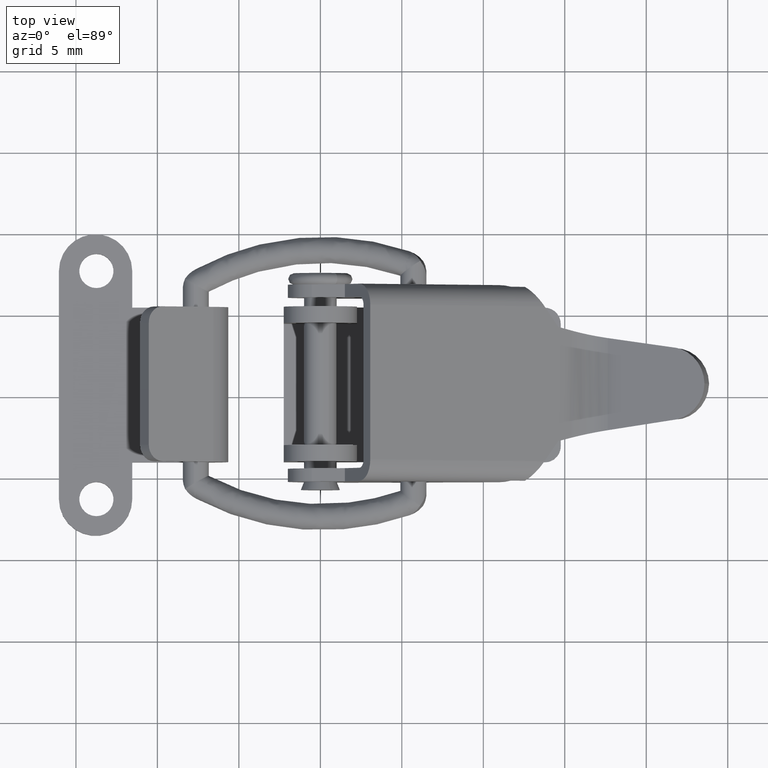
[diagram: clean part render]
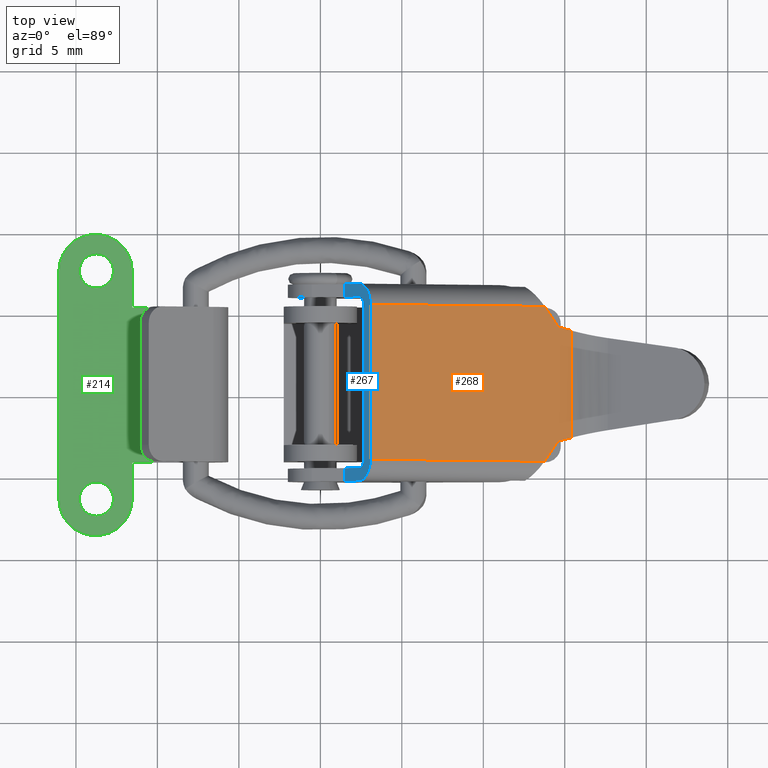
[diagram: same view with three faces highlighted in distinct colors, each labeled with its STEP entity id]
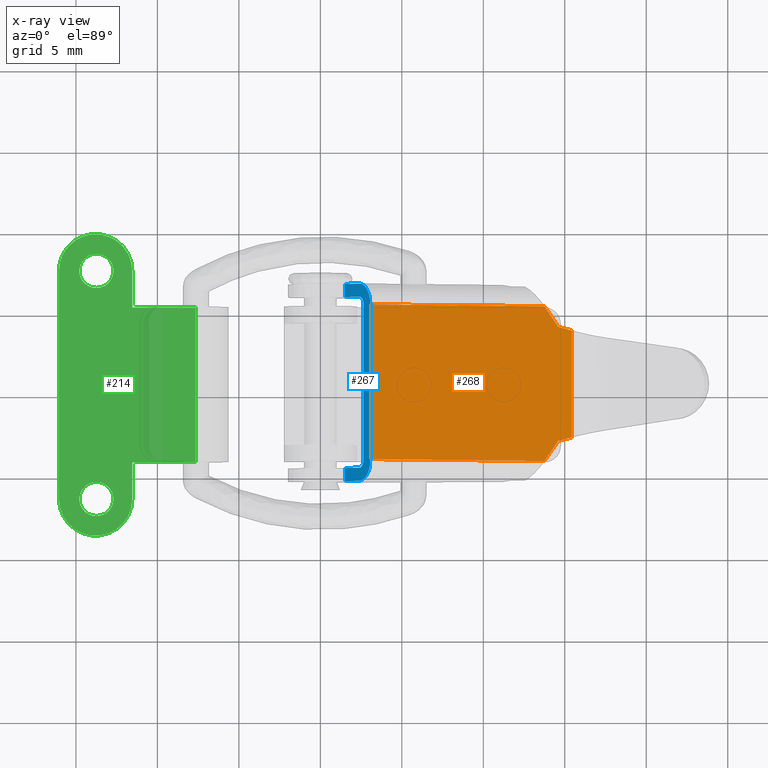
[diagram: x-ray of the same camera — body ghosted, the three highlighted faces saturated]
A machine part, top view with three faces highlighted in distinct colors.
The next image is the same camera in x-ray (body ghosted, the three faces saturated) — at least one of them is partly hidden behind the body in this view.
Their STEP definitions:

[orange] entity #268 — the highlighted planar face has unit normal (-0.5195, 0, -0.8545).
#268=ADVANCED_FACE('',(#1142),#1141,.F.);
#1141=PLANE('',#1965);
#1142=FACE_OUTER_BOUND('',#1966,.T.);
#1962=CARTESIAN_POINT('',(1.58959432741E+01,-5.70000000000E+00,0.00000000000E+00));
#1963=DIRECTION('',(0.00000000000E+00,0.00000000000E+00,-1.00000000000E+00));
#1964=DIRECTION('',(-1.00000000000E+00,0.00000000000E+00,0.00000000000E+00));
#1965=AXIS2_PLACEMENT_3D('',#1962,#1963,#1964);
#1966=EDGE_LOOP('',(#2694,#2695,#2696,#2697,#2698,#2699,#2700,#2701,#2702));
#2694=ORIENTED_EDGE('',*,*,#3104,.F.);
#2695=ORIENTED_EDGE('',*,*,#3105,.T.);
#2696=ORIENTED_EDGE('',*,*,#3099,.F.);
#2697=ORIENTED_EDGE('',*,*,#3106,.T.);
#2698=ORIENTED_EDGE('',*,*,#3107,.F.);
#2699=ORIENTED_EDGE('',*,*,#3108,.F.);
#2700=ORIENTED_EDGE('',*,*,#3109,.F.);
#2701=ORIENTED_EDGE('',*,*,#3110,.T.);
#2702=ORIENTED_EDGE('',*,*,#3080,.F.);
#3080=EDGE_CURVE('',#4753,#4760,#4761,.T.);
#3099=EDGE_CURVE('',#4890,#4891,#4892,.T.);
#3104=EDGE_CURVE('',#4922,#4753,#4923,.T.);
#3105=EDGE_CURVE('',#4922,#4891,#4929,.T.);
#3106=EDGE_CURVE('',#4890,#4935,#4936,.T.);
#3107=EDGE_CURVE('',#4942,#4935,#4943,.T.);
#3108=EDGE_CURVE('',#4949,#4942,#4950,.T.);
#3109=EDGE_CURVE('',#4956,#4949,#4957,.T.);
#3110=EDGE_CURVE('',#4956,#4760,#4963,.T.);
#4753=VERTEX_POINT('',#6282);
#4760=VERTEX_POINT('',#6286);
#4761=LINE('',#6287,#6288);
#4890=VERTEX_POINT('',#6369);
#4891=VERTEX_POINT('',#6370);
#4892=LINE('',#6371,#6372);
#4922=VERTEX_POINT('',#6389);
#4923=LINE('',#6390,#6391);
#4929=LINE('',#6393,#6394);
#4935=VERTEX_POINT('',#6396);
#4936=LINE('',#6397,#6398);
#4942=VERTEX_POINT('',#6400);
#4943=LINE('',#6401,#6402);
#4949=VERTEX_POINT('',#6404);
#4950=LINE('',#6405,#6406);
#4956=VERTEX_POINT('',#6408);
#4957=LINE('',#6409,#6410);
#4963=LINE('',#6412,#6413);
#6282=CARTESIAN_POINT('',(1.35000000000E+01,3.50000000000E+00,0.00000000000E+00));
#6286=CARTESIAN_POINT('',(1.44508575219E+01,3.28399004930E+00,0.00000000000E+00));
#6287=CARTESIAN_POINT('',(1.35000000000E+01,3.50000000000E+00,0.00000000000E+00));
#6288=VECTOR('',#6289,9.75084778764E-01);
#6289=DIRECTION('',(9.75153691883E-01,-2.21529404836E-01,0.00000000000E+00));
#6369=CARTESIAN_POINT('',(0.00000000000E+00,-4.75000000000E+00,0.00000000000E+00));
#6370=CARTESIAN_POINT('',(0.00000000000E+00,4.75000000000E+00,0.00000000000E+00));
#6371=CARTESIAN_POINT('',(0.00000000000E+00,-4.75000000000E+00,0.00000000000E+00));
#6372=VECTOR('',#6373,9.50000000000E+00);
#6373=DIRECTION('',(0.00000000000E+00,1.00000000000E+00,0.00000000000E+00));
#6389=CARTESIAN_POINT('',(1.25196078431E+01,4.75000000000E+00,0.00000000000E+00));
#6390=CARTESIAN_POINT('',(1.25196078431E+01,4.75000000000E+00,0.00000000000E+00));
#6391=VECTOR('',#6392,1.58860592384E+00);
#6392=DIRECTION('',(6.17139935185E-01,-7.86853417353E-01,0.00000000000E+00));
#6393=CARTESIAN_POINT('',(1.25196078431E+01,4.75000000000E+00,0.00000000000E+00));
#6394=VECTOR('',#6395,1.25196078431E+01);
#6395=DIRECTION('',(-1.00000000000E+00,0.00000000000E+00,0.00000000000E+00));
#6396=CARTESIAN_POINT('',(1.25196078431E+01,-4.75000000000E+00,0.00000000000E+00));
#6397=CARTESIAN_POINT('',(0.00000000000E+00,-4.75000000000E+00,0.00000000000E+00));
#6398=VECTOR('',#6399,1.25196078431E+01);
#6399=DIRECTION('',(1.00000000000E+00,0.00000000000E+00,0.00000000000E+00));
#6400=CARTESIAN_POINT('',(1.35000000000E+01,-3.50000000000E+00,0.00000000000E+00));
#6401=CARTESIAN_POINT('',(1.35000000000E+01,-3.50000000000E+00,0.00000000000E+00));
#6402=VECTOR('',#6403,1.58860592384E+00);
#6403=DIRECTION('',(-6.17139935184E-01,-7.86853417353E-01,0.00000000000E+00));
#6404=CARTESIAN_POINT('',(1.35433557425E+01,-3.50000000000E+00,0.00000000000E+00));
#6405=CARTESIAN_POINT('',(1.35433557425E+01,-3.50000000000E+00,0.00000000000E+00));
#6406=VECTOR('',#6407,4.33557424568E-02);
#6407=DIRECTION('',(-1.00000000000E+00,0.00000000000E+00,0.00000000000E+00));
#6408=CARTESIAN_POINT('',(1.44508575219E+01,-3.29227312831E+00,0.00000000000E+00));
#6409=CARTESIAN_POINT('',(1.44508575219E+01,-3.29227312831E+00,0.00000000000E+00));
#6410=VECTOR('',#6411,9.30972573678E-01);
#6411=DIRECTION('',(-9.74788952024E-01,-2.23128884309E-01,0.00000000000E+00));
#6412=CARTESIAN_POINT('',(1.44508575219E+01,-3.29227312831E+00,2.88657986403E-14));
#6413=VECTOR('',#6414,6.57626317761E+00);
#6414=DIRECTION('',(0.00000000000E+00,1.00000000000E+00,0.00000000000E+00));

[blue] entity #267 — the highlighted planar face has unit normal (0.8545, 0, -0.5195).
#267=ADVANCED_FACE('',(#1132),#1131,.F.);
#1131=PLANE('',#1960);
#1132=FACE_OUTER_BOUND('',#1961,.T.);
#1957=CARTESIAN_POINT('',(0.00000000000E+00,-7.26000000000E+00,3.00000000000E-01));
#1958=DIRECTION('',(1.00000000000E+00,-0.00000000000E+00,0.00000000000E+00));
#1959=DIRECTION('',(0.00000000000E+00,0.00000000000E+00,-1.00000000000E+00));
#1960=AXIS2_PLACEMENT_3D('',#1957,#1958,#1959);
#1961=EDGE_LOOP('',(#2682,#2683,#2684,#2685,#2686,#2687,#2688,#2689,#2690,#2691,#2692,#2693));
#2682=ORIENTED_EDGE('',*,*,#3099,.T.);
#2683=ORIENTED_EDGE('',*,*,#3100,.T.);
#2684=ORIENTED_EDGE('',*,*,#3056,.T.);
#2685=ORIENTED_EDGE('',*,*,#3101,.F.);
#2686=ORIENTED_EDGE('',*,*,#3085,.F.);
#2687=ORIENTED_EDGE('',*,*,#3102,.T.);
#2688=ORIENTED_EDGE('',*,*,#3034,.F.);
#2689=ORIENTED_EDGE('',*,*,#3076,.T.);
#2690=ORIENTED_EDGE('',*,*,#3094,.T.);
#2691=ORIENTED_EDGE('',*,*,#3053,.F.);
#2692=ORIENTED_EDGE('',*,*,#3068,.F.);
#2693=ORIENTED_EDGE('',*,*,#3103,.T.);
#3034=EDGE_CURVE('',#4442,#4449,#4450,.T.);
#3053=EDGE_CURVE('',#4576,#4577,#4578,.T.);
#3056=EDGE_CURVE('',#4596,#4597,#4598,.T.);
#3068=EDGE_CURVE('',#4673,#4576,#4680,.T.);
#3076=EDGE_CURVE('',#4442,#4727,#4734,.T.);
#3085=EDGE_CURVE('',#4787,#4794,#4795,.T.);
#3094=EDGE_CURVE('',#4727,#4577,#4856,.T.);
#3099=EDGE_CURVE('',#4890,#4891,#4892,.T.);
#3100=EDGE_CURVE('',#4891,#4596,#4898,.T.);
#3101=EDGE_CURVE('',#4794,#4597,#4904,.T.);
#3102=EDGE_CURVE('',#4787,#4449,#4910,.T.);
#3103=EDGE_CURVE('',#4673,#4890,#4916,.T.);
#4442=VERTEX_POINT('',#6093);
#4449=VERTEX_POINT('',#6097);
#4450=LINE('',#6098,#6099);
#4576=VERTEX_POINT('',#6171);
#4577=VERTEX_POINT('',#6172);
#4578=LINE('',#6173,#6174);
#4596=VERTEX_POINT('',#6182);
#4597=VERTEX_POINT('',#6183);
#4598=LINE('',#6184,#6185);
#4673=VERTEX_POINT('',#6232);
#4680=LINE('',#6236,#6237);
#4727=VERTEX_POINT('',#6267);
#4734=CIRCLE('',#6274,5.00000000000E-01);
#4787=VERTEX_POINT('',#6301);
#4794=VERTEX_POINT('',#6305);
#4795=LINE('',#6306,#6307);
#4856=LINE('',#6346,#6347);
#4890=VERTEX_POINT('',#6369);
#4891=VERTEX_POINT('',#6370);
#4892=LINE('',#6371,#6372);
#4898=CIRCLE('',#6377,1.30000000000E+00);
#4904=LINE('',#6378,#6379);
#4910=CIRCLE('',#6384,5.00000000000E-01);
#4916=CIRCLE('',#6388,1.30000000000E+00);
#6093=CARTESIAN_POINT('',(0.00000000000E+00,-4.75000000000E+00,-8.00000000000E-01));
#6097=CARTESIAN_POINT('',(0.00000000000E+00,4.75000000000E+00,-8.00000000000E-01));
#6098=CARTESIAN_POINT('',(0.00000000000E+00,-4.75000000000E+00,-8.00000000000E-01));
#6099=VECTOR('',#6100,9.50000000000E+00);
#6100=DIRECTION('',(0.00000000000E+00,1.00000000000E+00,0.00000000000E+00));
#6171=CARTESIAN_POINT('',(0.00000000000E+00,-6.05000000000E+00,-3.00000000000E+00));
#6172=CARTESIAN_POINT('',(0.00000000000E+00,-5.25000000000E+00,-3.00000000000E+00));
#6173=CARTESIAN_POINT('',(0.00000000000E+00,-6.05000000000E+00,-3.00000000000E+00));
#6174=VECTOR('',#6175,8.00000000000E-01);
#6175=DIRECTION('',(0.00000000000E+00,1.00000000000E+00,0.00000000000E+00));
#6182=CARTESIAN_POINT('',(0.00000000000E+00,6.05000000000E+00,-1.30000000000E+00));
#6183=CARTESIAN_POINT('',(0.00000000000E+00,6.05000000000E+00,-3.00000000000E+00));
#6184=CARTESIAN_POINT('',(0.00000000000E+00,6.05000000000E+00,-1.30000000000E+00));
#6185=VECTOR('',#6186,1.70000000000E+00);
#6186=DIRECTION('',(0.00000000000E+00,0.00000000000E+00,-1.00000000000E+00));
#6232=CARTESIAN_POINT('',(0.00000000000E+00,-6.05000000000E+00,-1.30000000000E+00));
#6236=CARTESIAN_POINT('',(0.00000000000E+00,-6.05000000000E+00,-1.30000000000E+00));
#6237=VECTOR('',#6238,1.70000000000E+00);
#6238=DIRECTION('',(0.00000000000E+00,0.00000000000E+00,-1.00000000000E+00));
#6267=CARTESIAN_POINT('',(0.00000000000E+00,-5.25000000000E+00,-1.30000000000E+00));
#6271=CARTESIAN_POINT('',(0.00000000000E+00,-4.75000000000E+00,-1.30000000000E+00));
#6272=DIRECTION('',(1.00000000000E+00,0.00000000000E+00,0.00000000000E+00));
#6273=DIRECTION('',(-0.00000000000E+00,-0.00000000000E+00,1.00000000000E+00));
#6274=AXIS2_PLACEMENT_3D('',#6271,#6272,#6273);
#6301=CARTESIAN_POINT('',(0.00000000000E+00,5.25000000000E+00,-1.30000000000E+00));
#6305=CARTESIAN_POINT('',(0.00000000000E+00,5.25000000000E+00,-3.00000000000E+00));
#6306=CARTESIAN_POINT('',(0.00000000000E+00,5.25000000000E+00,-1.30000000000E+00));
#6307=VECTOR('',#6308,1.70000000000E+00);
#6308=DIRECTION('',(0.00000000000E+00,0.00000000000E+00,-1.00000000000E+00));
#6346=CARTESIAN_POINT('',(0.00000000000E+00,-5.25000000000E+00,-1.30000000000E+00));
#6347=VECTOR('',#6348,1.70000000000E+00);
#6348=DIRECTION('',(0.00000000000E+00,0.00000000000E+00,-1.00000000000E+00));
#6369=CARTESIAN_POINT('',(0.00000000000E+00,-4.75000000000E+00,0.00000000000E+00));
#6370=CARTESIAN_POINT('',(0.00000000000E+00,4.75000000000E+00,0.00000000000E+00));
#6371=CARTESIAN_POINT('',(0.00000000000E+00,-4.75000000000E+00,0.00000000000E+00));
#6372=VECTOR('',#6373,9.50000000000E+00);
#6373=DIRECTION('',(0.00000000000E+00,1.00000000000E+00,0.00000000000E+00));
#6374=CARTESIAN_POINT('',(0.00000000000E+00,4.75000000000E+00,-1.30000000000E+00));
#6375=DIRECTION('',(-1.00000000000E+00,0.00000000000E+00,-0.00000000000E+00));
#6376=DIRECTION('',(-0.00000000000E+00,-0.00000000000E+00,1.00000000000E+00));
#6377=AXIS2_PLACEMENT_3D('',#6374,#6375,#6376);
#6378=CARTESIAN_POINT('',(0.00000000000E+00,5.25000000000E+00,-3.00000000000E+00));
#6379=VECTOR('',#6380,8.00000000000E-01);
#6380=DIRECTION('',(0.00000000000E+00,1.00000000000E+00,0.00000000000E+00));
#6381=CARTESIAN_POINT('',(0.00000000000E+00,4.75000000000E+00,-1.30000000000E+00));
#6382=DIRECTION('',(1.00000000000E+00,0.00000000000E+00,0.00000000000E+00));
#6383=DIRECTION('',(-0.00000000000E+00,-0.00000000000E+00,1.00000000000E+00));
#6384=AXIS2_PLACEMENT_3D('',#6381,#6382,#6383);
#6385=CARTESIAN_POINT('',(0.00000000000E+00,-4.75000000000E+00,-1.30000000000E+00));
#6386=DIRECTION('',(-1.00000000000E+00,0.00000000000E+00,-0.00000000000E+00));
#6387=DIRECTION('',(-0.00000000000E+00,2.93098878501E-14,1.00000000000E+00));
#6388=AXIS2_PLACEMENT_3D('',#6385,#6386,#6387);

[green] entity #214 — the highlighted planar face has unit normal (0, 0, -1).
#214=ADVANCED_FACE('',(#584,#585,#586),#583,.F.);
#583=PLANE('',#1661);
#584=FACE_OUTER_BOUND('',#1662,.T.);
#585=FACE_BOUND('',#1663,.T.);
#586=FACE_BOUND('',#1664,.T.);
#1658=CARTESIAN_POINT('',(-8.40000000000E-01,-1.00000000000E+00,-1.11000000000E+01));
#1659=DIRECTION('',(0.00000000000E+00,1.00000000000E+00,0.00000000000E+00));
#1660=DIRECTION('',(0.00000000000E+00,-0.00000000000E+00,1.00000000000E+00));
#1661=AXIS2_PLACEMENT_3D('',#1658,#1659,#1660);
#1662=EDGE_LOOP('',(#2390,#2391,#2392,#2393,#2394,#2395,#2396,#2397));
#1663=EDGE_LOOP('',(#2398,#2399));
#1664=EDGE_LOOP('',(#2400,#2401));
#2390=ORIENTED_EDGE('',*,*,#2931,.T.);
#2391=ORIENTED_EDGE('',*,*,#2933,.T.);
#2392=ORIENTED_EDGE('',*,*,#2934,.F.);
#2393=ORIENTED_EDGE('',*,*,#2912,.T.);
#2394=ORIENTED_EDGE('',*,*,#2935,.F.);
#2395=ORIENTED_EDGE('',*,*,#2907,.F.);
#2396=ORIENTED_EDGE('',*,*,#2936,.F.);
#2397=ORIENTED_EDGE('',*,*,#2937,.T.);
#2398=ORIENTED_EDGE('',*,*,#2938,.F.);
#2399=ORIENTED_EDGE('',*,*,#2939,.F.);
#2400=ORIENTED_EDGE('',*,*,#2940,.F.);
#2401=ORIENTED_EDGE('',*,*,#2941,.F.);
#2907=EDGE_CURVE('',#3595,#3602,#3603,.T.);
#2912=EDGE_CURVE('',#3636,#3629,#3637,.T.);
#2931=EDGE_CURVE('',#3762,#3755,#3763,.T.);
#2933=EDGE_CURVE('',#3755,#3775,#3776,.T.);
#2934=EDGE_CURVE('',#3636,#3775,#3782,.T.);
#2935=EDGE_CURVE('',#3602,#3629,#3788,.T.);
#2936=EDGE_CURVE('',#3794,#3595,#3795,.T.);
#2937=EDGE_CURVE('',#3794,#3762,#3801,.T.);
#2938=EDGE_CURVE('',#3807,#3808,#3809,.T.);
#2939=EDGE_CURVE('',#3808,#3807,#3815,.T.);
#2940=EDGE_CURVE('',#3821,#3822,#3823,.T.);
#2941=EDGE_CURVE('',#3822,#3821,#3829,.T.);
#3595=VERTEX_POINT('',#5585);
#3602=VERTEX_POINT('',#5589);
#3603=LINE('',#5590,#5591);
#3629=VERTEX_POINT('',#5605);
#3636=VERTEX_POINT('',#5610);
#3637=LINE('',#5611,#5612);
#3755=VERTEX_POINT('',#5682);
#3762=VERTEX_POINT('',#5686);
#3763=LINE('',#5687,#5688);
#3775=VERTEX_POINT('',#5693);
#3776=CIRCLE('',#5697,2.25000000000E+00);
#3782=LINE('',#5698,#5699);
#3788=LINE('',#5701,#5702);
#3794=VERTEX_POINT('',#5704);
#3795=LINE('',#5705,#5706);
#3801=CIRCLE('',#5711,2.25000000000E+00);
#3807=VERTEX_POINT('',#5712);
#3808=VERTEX_POINT('',#5713);
#3809=CIRCLE('',#5717,1.05000000000E+00);
#3815=CIRCLE('',#5721,1.05000000000E+00);
#3821=VERTEX_POINT('',#5722);
#3822=VERTEX_POINT('',#5723);
#3823=CIRCLE('',#5727,1.05000000000E+00);
#3829=CIRCLE('',#5731,1.05000000000E+00);
#5585=CARTESIAN_POINT('',(4.50000000000E+00,-1.00000000000E+00,4.75000000000E+00));
#5589=CARTESIAN_POINT('',(8.40000000000E+00,-1.00000000000E+00,4.75000000000E+00));
#5590=CARTESIAN_POINT('',(4.50000000000E+00,-1.00000000000E+00,4.75000000000E+00));
#5591=VECTOR('',#5592,3.90000000000E+00);
#5592=DIRECTION('',(1.00000000000E+00,0.00000000000E+00,0.00000000000E+00));
#5605=CARTESIAN_POINT('',(8.40000000000E+00,-1.00000000000E+00,-4.75000000000E+00));
#5610=CARTESIAN_POINT('',(4.50000000000E+00,-1.00000000000E+00,-4.75000000000E+00));
#5611=CARTESIAN_POINT('',(4.50000000000E+00,-1.00000000000E+00,-4.75000000000E+00));
#5612=VECTOR('',#5613,3.90000000000E+00);
#5613=DIRECTION('',(1.00000000000E+00,0.00000000000E+00,0.00000000000E+00));
#5682=CARTESIAN_POINT('',(-1.42108547152E-14,-1.00000000000E+00,-7.00000000000E+00));
#5686=CARTESIAN_POINT('',(1.42108547152E-14,-1.00000000000E+00,7.00000000000E+00));
#5687=CARTESIAN_POINT('',(1.42108547152E-14,-1.00000000000E+00,7.00000000000E+00));
#5688=VECTOR('',#5689,1.40000000000E+01);
#5689=DIRECTION('',(0.00000000000E+00,0.00000000000E+00,-1.00000000000E+00));
#5693=CARTESIAN_POINT('',(4.50000000000E+00,-1.00000000000E+00,-7.00000000000E+00));
#5694=CARTESIAN_POINT('',(2.25000000000E+00,-1.00000000000E+00,-7.00000000000E+00));
#5695=DIRECTION('',(0.00000000000E+00,-1.00000000000E+00,0.00000000000E+00));
#5696=DIRECTION('',(-0.00000000000E+00,-0.00000000000E+00,1.00000000000E+00));
#5697=AXIS2_PLACEMENT_3D('',#5694,#5695,#5696);
#5698=CARTESIAN_POINT('',(4.50000000000E+00,-1.00000000000E+00,-4.75000000000E+00));
#5699=VECTOR('',#5700,2.25000000000E+00);
#5700=DIRECTION('',(0.00000000000E+00,0.00000000000E+00,-1.00000000000E+00));
#5701=CARTESIAN_POINT('',(8.40000000000E+00,-1.00000000000E+00,4.75000000000E+00));
#5702=VECTOR('',#5703,9.50000000000E+00);
#5703=DIRECTION('',(0.00000000000E+00,0.00000000000E+00,-1.00000000000E+00));
#5704=CARTESIAN_POINT('',(4.50000000000E+00,-1.00000000000E+00,7.00000000000E+00));
#5705=CARTESIAN_POINT('',(4.50000000000E+00,-1.00000000000E+00,7.00000000000E+00));
#5706=VECTOR('',#5707,2.25000000000E+00);
#5707=DIRECTION('',(0.00000000000E+00,0.00000000000E+00,-1.00000000000E+00));
#5708=CARTESIAN_POINT('',(2.25000000000E+00,-1.00000000000E+00,7.00000000000E+00));
#5709=DIRECTION('',(0.00000000000E+00,-1.00000000000E+00,0.00000000000E+00));
#5710=DIRECTION('',(1.00000000000E+00,0.00000000000E+00,-1.96004779247E-15));
#5711=AXIS2_PLACEMENT_3D('',#5708,#5709,#5710);
#5712=CARTESIAN_POINT('',(2.30000000000E+00,-1.00000000000E+00,8.05000000000E+00));
#5713=CARTESIAN_POINT('',(2.30000000000E+00,-1.00000000000E+00,5.95000000000E+00));
#5714=CARTESIAN_POINT('',(2.30000000000E+00,-1.00000000000E+00,7.00000000000E+00));
#5715=DIRECTION('',(0.00000000000E+00,-1.00000000000E+00,-0.00000000000E+00));
#5716=DIRECTION('',(-1.22460635382E-16,0.00000000000E+00,-1.00000000000E+00));
#5717=AXIS2_PLACEMENT_3D('',#5714,#5715,#5716);
#5718=CARTESIAN_POINT('',(2.30000000000E+00,-1.00000000000E+00,7.00000000000E+00));
#5719=DIRECTION('',(0.00000000000E+00,-1.00000000000E+00,-0.00000000000E+00));
#5720=DIRECTION('',(-1.22460635382E-16,0.00000000000E+00,-1.00000000000E+00));
#5721=AXIS2_PLACEMENT_3D('',#5718,#5719,#5720);
#5722=CARTESIAN_POINT('',(2.30000000000E+00,-1.00000000000E+00,-5.95000000000E+00));
#5723=CARTESIAN_POINT('',(2.30000000000E+00,-1.00000000000E+00,-8.05000000000E+00));
#5724=CARTESIAN_POINT('',(2.30000000000E+00,-1.00000000000E+00,-7.00000000000E+00));
#5725=DIRECTION('',(0.00000000000E+00,-1.00000000000E+00,-0.00000000000E+00));
#5726=DIRECTION('',(-1.22460635382E-16,0.00000000000E+00,-1.00000000000E+00));
#5727=AXIS2_PLACEMENT_3D('',#5724,#5725,#5726);
#5728=CARTESIAN_POINT('',(2.30000000000E+00,-1.00000000000E+00,-7.00000000000E+00));
#5729=DIRECTION('',(0.00000000000E+00,-1.00000000000E+00,-0.00000000000E+00));
#5730=DIRECTION('',(-1.22460635382E-16,0.00000000000E+00,-1.00000000000E+00));
#5731=AXIS2_PLACEMENT_3D('',#5728,#5729,#5730);